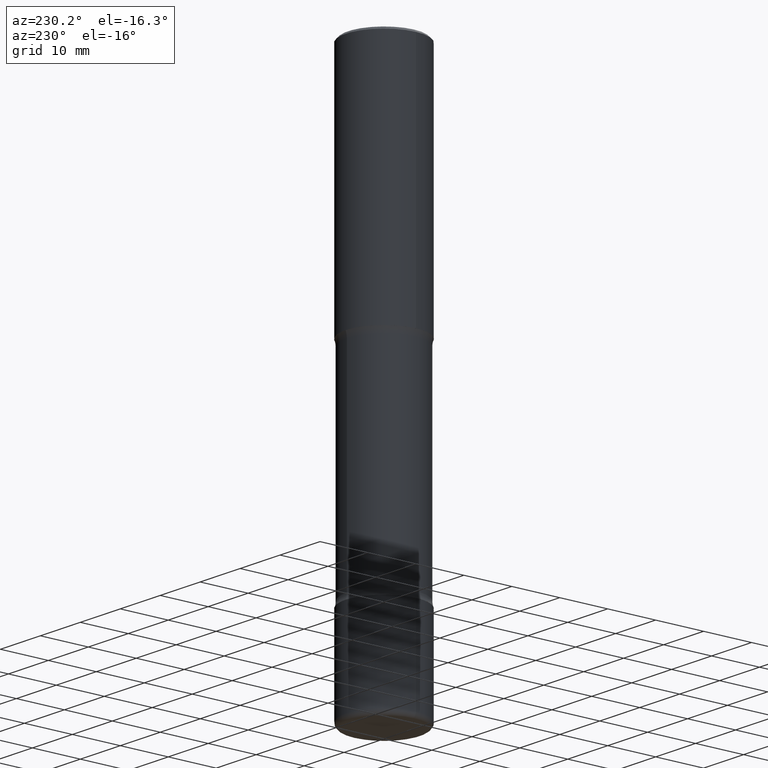
[diagram: clean part render]
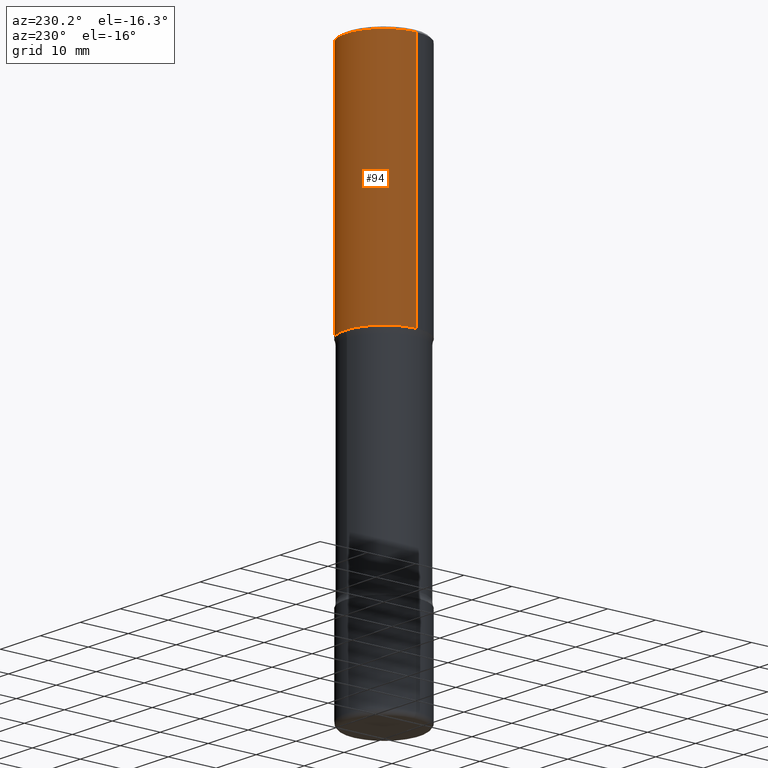
[diagram: same view with one face highlighted and labeled with its STEP entity id]
A machine part, auxiliary view. The second image highlights one B-rep face of the part: STEP entity #94.
In plain terms, the highlighted cylindrical surface (partial cylindrical patch) has radius 7.9997 mm, axis along (-0, 0, 1).
Its self-contained STEP definition (entity closure, byte-faithful):
#15 = CARTESIAN_POINT ( 'NONE',  ( 0.3149499999999998967, -2.230543471175006266E-15, -0.02000000000000006981 ) ) ;
#30 = VERTEX_POINT ( 'NONE', #450 ) ;
#33 = AXIS2_PLACEMENT_3D ( 'NONE', #338, #427, #391 ) ;
#38 = FACE_OUTER_BOUND ( 'NONE', #394, .T. ) ;
#39 = ORIENTED_EDGE ( 'NONE', *, *, #480, .F. ) ;
#72 = VERTEX_POINT ( 'NONE', #15 ) ;
#76 = CIRCLE ( 'NONE', #403, 0.3149499999999998967 ) ;
#88 = LINE ( 'NONE', #266, #448 ) ;
#94 = ADVANCED_FACE ( 'NONE', ( #38 ), #163, .T. ) ;
#106 = ORIENTED_EDGE ( 'NONE', *, *, #247, .T. ) ;
#111 = VERTEX_POINT ( 'NONE', #292 ) ;
#126 = CARTESIAN_POINT ( 'NONE',  ( 4.813905344975441835E-29, -6.872981015512731707E-15, -1.968500000000000139 ) ) ;
#160 = CIRCLE ( 'NONE', #181, 0.3149500000000001743 ) ;
#163 = CYLINDRICAL_SURFACE ( 'NONE', #33, 0.3149500000000000077 ) ;
#181 = AXIS2_PLACEMENT_3D ( 'NONE', #126, #400, #555 ) ;
#203 = LINE ( 'NONE', #455, #217 ) ;
#217 = VECTOR ( 'NONE', #345, 39.37007874015748143 ) ;
#219 = CARTESIAN_POINT ( 'NONE',  ( 4.890937612370289799E-31, -6.982962677686315028E-17, -0.02000000000000006981 ) ) ;
#247 = EDGE_CURVE ( 'NONE', #111, #451, #203, .T. ) ;
#266 = CARTESIAN_POINT ( 'NONE',  ( 0.3149500000000000077, -2.199284095337289871E-15, 1.535751875536930130E-29 ) ) ;
#292 = CARTESIAN_POINT ( 'NONE',  ( -0.3149500000000001743, -1.233550974868359743E-15, -1.968500000000000139 ) ) ;
#308 = ORIENTED_EDGE ( 'NONE', *, *, #536, .T. ) ;
#314 = DIRECTION ( 'NONE',  ( -2.445468806185136597E-29, 3.491481338843145583E-15, 1.000000000000000000 ) ) ;
#338 = CARTESIAN_POINT ( 'NONE',  ( 0.000000000000000000, 0.000000000000000000, 0.000000000000000000 ) ) ;
#345 = DIRECTION ( 'NONE',  ( -2.445468806185136877E-29, 3.491481338843145188E-15, 1.000000000000000000 ) ) ;
#391 = DIRECTION ( 'NONE',  ( 1.000000000000000000, -6.982962677686266711E-15, 4.876176775795936353E-29 ) ) ;
#394 = EDGE_LOOP ( 'NONE', ( #308, #106, #39, #491 ) ) ;
#400 = DIRECTION ( 'NONE',  ( -2.445468806185136597E-29, 3.491481338843145583E-15, 1.000000000000000000 ) ) ;
#403 = AXIS2_PLACEMENT_3D ( 'NONE', #219, #314, #513 ) ;
#427 = DIRECTION ( 'NONE',  ( -2.445468806185136597E-29, 3.491481338843145583E-15, 1.000000000000000000 ) ) ;
#437 = CARTESIAN_POINT ( 'NONE',  ( -0.3149499999999998967, 2.129454468560425784E-15, -0.02000000000000006981 ) ) ;
#448 = VECTOR ( 'NONE', #509, 39.37007874015748143 ) ;
#450 = CARTESIAN_POINT ( 'NONE',  ( 0.3149500000000001743, -9.072265110850023156E-15, -1.968500000000000139 ) ) ;
#451 = VERTEX_POINT ( 'NONE', #437 ) ;
#455 = CARTESIAN_POINT ( 'NONE',  ( -0.3149500000000000077, 2.237854346276435590E-15, -1.549218606675782676E-29 ) ) ;
#480 = EDGE_CURVE ( 'NONE', #72, #451, #76, .T. ) ;
#491 = ORIENTED_EDGE ( 'NONE', *, *, #500, .F. ) ;
#500 = EDGE_CURVE ( 'NONE', #30, #72, #88, .T. ) ;
#509 = DIRECTION ( 'NONE',  ( -2.445468806185136877E-29, 3.491481338843145188E-15, 1.000000000000000000 ) ) ;
#513 = DIRECTION ( 'NONE',  ( 1.000000000000000000, -6.982962677686265922E-15, 0.000000000000000000 ) ) ;
#536 = EDGE_CURVE ( 'NONE', #30, #111, #160, .T. ) ;
#555 = DIRECTION ( 'NONE',  ( 1.000000000000000000, -6.982962677686269866E-15, 0.000000000000000000 ) ) ;